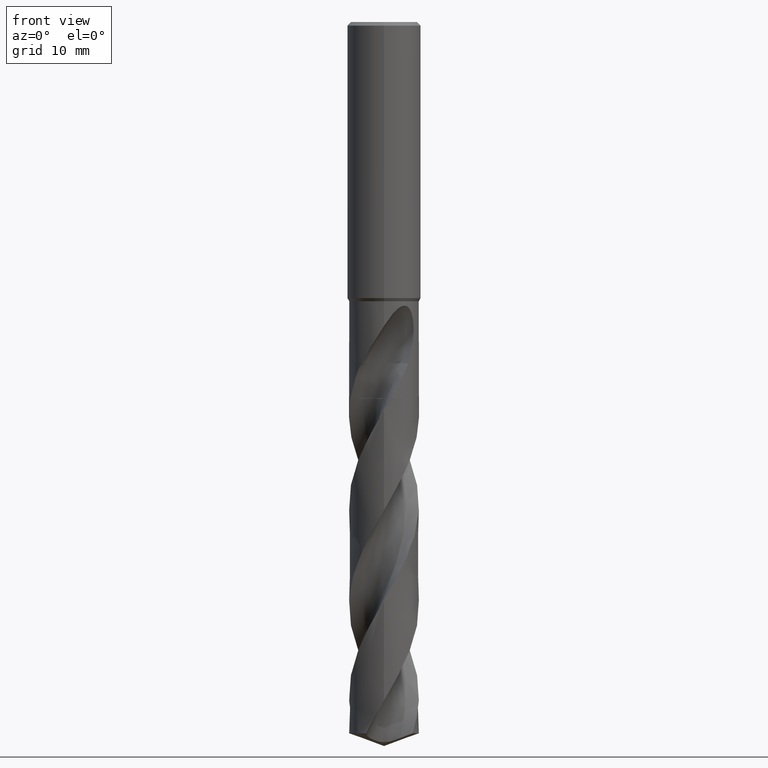
[diagram: clean part render]
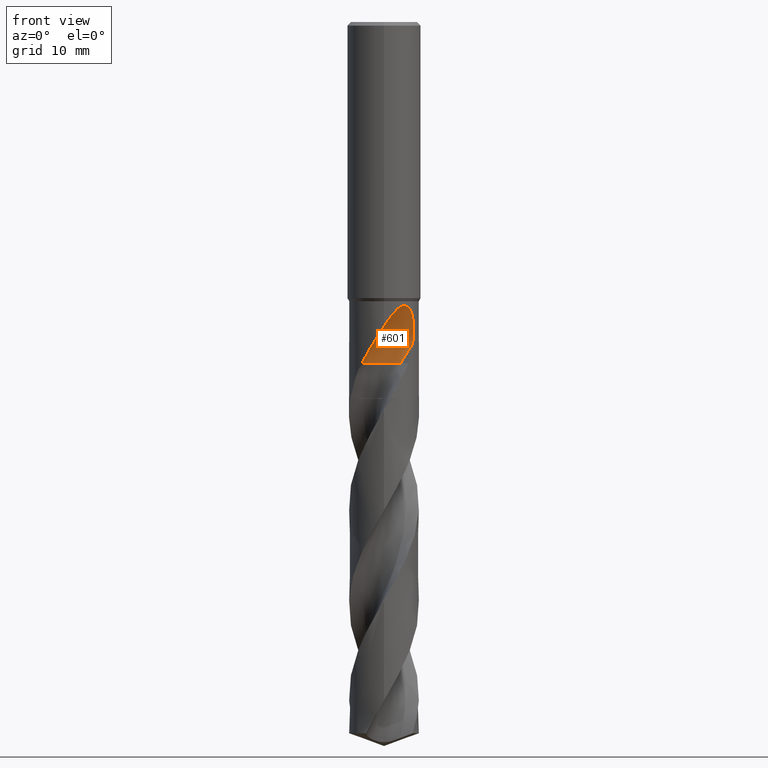
[diagram: same view with one face highlighted and labeled with its STEP entity id]
A machine part, front view. The second image highlights one B-rep face of the part: STEP entity #601.
In plain terms, the highlighted face is a SurfaceOfRevolution surface.
Its self-contained STEP definition (entity closure, byte-faithful):
#315=VERTEX_POINT('',#848);
#331=VERTEX_POINT('',#865);
#347=EDGE_CURVE('',#315,#331,#882,.T.);
#351=EDGE_CURVE('',#791,#745,#886,.T.);
#533=EDGE_CURVE('',#745,#315,#1084,.T.);
#535=EDGE_CURVE('',#791,#741,#1086,.T.);
#601=ADVANCED_FACE('',(#1159),#1160,.F.);
#741=VERTEX_POINT('',#1315);
#745=VERTEX_POINT('',#1319);
#789=EDGE_CURVE('',#741,#331,#1368,.T.);
#791=VERTEX_POINT('',#1370);
#848=CARTESIAN_POINT('',(2.68700576843817,-2.82299423156183,-55.6234));
#865=CARTESIAN_POINT('',(4.63776033084659,-3.31378622026614,-52.5021927001465));
#882=CIRCLE('',#1685,24.7679814308697);
#886=CIRCLE('',#1690,3.8);
#1084=CIRCLE('',#4311,3.8);
#1086=B_SPLINE_CURVE_WITH_KNOTS('',3,(#4314,#4315,#4316,#4317,#4318,#4319,#4320,#4321,#4322,#4323,#4324,#4325,#4326,#4327,#4328,#4329,#4330,#4331,#4332,#4333,#4334,#4335,#4336,#4337,#4338,#4339,#4340,#4341,#4342,#4343),.UNSPECIFIED.,.F.,.F.,(4,2,2,2,2,2,2,2,2,2,2,2,2,2,4),(0.0,2.7926778889615,4.31754598055786,5.69869259420309,7.30325232772353,9.23069609631088,10.9012443522705,11.6582801216618,12.2115809013783,12.7351652311766,13.3993631586042,14.3711116584775,15.7525664123368,16.6565782429127,17.6066332438752),.UNSPECIFIED.);
#1159=FACE_OUTER_BOUND('',#6140,.T.);
#1160=SURFACE_OF_REVOLUTION('',#6141,#6142);
#1315=CARTESIAN_POINT('',(1.6889982332657E-012,-5.7,-49.564432701385));
#1319=CARTESIAN_POINT('',(0.629755605937252,-1.76253026339539,-55.6234));
#1368=B_SPLINE_CURVE_WITH_KNOTS('',3,(#8740,#8741,#8742,#8743,#8744,#8745,#8746,#8747,#8748,#8749,#8750,#8751,#8752,#8753,#8754,#8755,#8756,#8757,#8758,#8759,#8760,#8761,#8762,#8763,#8764,#8765,#8766,#8767,#8768,#8769),.UNSPECIFIED.,.F.,.F.,(4,2,2,2,2,2,2,2,2,2,2,2,2,2,4),(0.0,2.7926778889615,4.31754598055786,5.69869259420309,7.30325232772353,9.23069609631088,10.9012443522705,11.6582801216618,12.2115809013783,12.7351652311766,13.3993631586042,14.3711116584775,15.7525664123368,16.6565782429127,17.6066332438752),.UNSPECIFIED.);
#1370=CARTESIAN_POINT('',(-3.63212121843226,-4.3929142325584,-55.6234));
#1685=AXIS2_PLACEMENT_3D('',#8935,#8936,#8937);
#1690=AXIS2_PLACEMENT_3D('',#8938,#8939,#8940);
#4311=AXIS2_PLACEMENT_3D('',#9107,#9108,#9109);
#4314=CARTESIAN_POINT('',(-3.63212121843226,-4.3929142325584,-55.6234));
#4315=CARTESIAN_POINT('',(-3.25612880486541,-4.70378987250696,-54.8305903574183));
#4316=CARTESIAN_POINT('',(-2.82382285423306,-4.9801366934213,-54.0914357850701));
#4317=CARTESIAN_POINT('',(-2.07001022468731,-5.31885775432251,-52.8566277055386));
#4318=CARTESIAN_POINT('',(-1.79875293876833,-5.41629503688911,-52.4221805832301));
#4319=CARTESIAN_POINT('',(-1.2736331393028,-5.56191839378492,-51.581203761006));
#4320=CARTESIAN_POINT('',(-1.02211525844426,-5.61336677658903,-51.1785939428247));
#4321=CARTESIAN_POINT('',(-0.477685034960905,-5.68761944438632,-50.3108630831571));
#4322=CARTESIAN_POINT('',(-0.180225050920481,-5.70505189272031,-49.8389498652344));
#4323=CARTESIAN_POINT('',(0.480357587329574,-5.69115663555511,-48.8293715885689));
#4324=CARTESIAN_POINT('',(0.872016417329019,-5.64817925460845,-48.2549104709474));
#4325=CARTESIAN_POINT('',(1.62727976974039,-5.47461626209701,-47.3076638301113));
#4326=CARTESIAN_POINT('',(2.04513663928422,-5.34238325924354,-46.8454446984873));
#4327=CARTESIAN_POINT('',(2.67755904640715,-5.0367309148296,-46.4126228247785));
#4328=CARTESIAN_POINT('',(2.88689516822255,-4.92134005876107,-46.3056551672719));
#4329=CARTESIAN_POINT('',(3.25370015573399,-4.68374746759451,-46.2234849169615));
#4330=CARTESIAN_POINT('',(3.40414746799161,-4.57554602873244,-46.2219506548835));
#4331=CARTESIAN_POINT('',(3.68436370411239,-4.35267366933959,-46.2938669707582));
#4332=CARTESIAN_POINT('',(3.80691629961332,-4.24503077791542,-46.3612948466912));
#4333=CARTESIAN_POINT('',(4.0563094681869,-4.00913980592545,-46.5722688643476));
#4334=CARTESIAN_POINT('',(4.17169003208752,-3.88689519589313,-46.728035196308));
#4335=CARTESIAN_POINT('',(4.40802672911815,-3.6199651691906,-47.1545717534252));
#4336=CARTESIAN_POINT('',(4.5209909620893,-3.47460269525771,-47.4709358170665));
#4337=CARTESIAN_POINT('',(4.73341600978283,-3.18271673679078,-48.3560873087968));
#4338=CARTESIAN_POINT('',(4.8102125643954,-3.05838741426594,-48.9864803666684));
#4339=CARTESIAN_POINT('',(4.8482236367528,-2.9975876951175,-50.1531821325049));
#4340=CARTESIAN_POINT('',(4.83928615139985,-3.01240686606538,-50.6178200273247));
#4341=CARTESIAN_POINT('',(4.7761595783502,-3.11157973865214,-51.5608028469977));
#4342=CARTESIAN_POINT('',(4.71979503542682,-3.19897576679507,-52.0355985184659));
#4343=CARTESIAN_POINT('',(4.63776033084659,-3.31378622026614,-52.5021927001465));
#6140=EDGE_LOOP('',(#9172,#9173,#9174,#9175,#9176));
#6141=(B_SPLINE_CURVE(3,(#9178,#9179,#9180,#9181,#9182,#9183,#9184,#9185,#9186),.UNSPECIFIED.,.F.,.F.)B_SPLINE_CURVE_WITH_KNOTS((4,1,3,1,4),(-2.85636930855203,-2.55358058408967,-2.2507918596273,-1.94800313516494,-1.64521441070257),.UNSPECIFIED.)RATIONAL_B_SPLINE_CURVE((1.09168101166155,1.03056033722052,0.969439662779485,1.03056033722052,1.09168101166155,1.03056033722052,0.969439662779485,1.03056033722052,1.09168101166155))BOUNDED_CURVE()REPRESENTATION_ITEM('')GEOMETRIC_REPRESENTATION_ITEM()CURVE());
#6142=AXIS1_PLACEMENT('',#9193,#9194);
#8740=CARTESIAN_POINT('',(-3.63212121843226,-4.3929142325584,-55.6234));
#8741=CARTESIAN_POINT('',(-3.25612880486541,-4.70378987250696,-54.8305903574183));
#8742=CARTESIAN_POINT('',(-2.82382285423306,-4.9801366934213,-54.0914357850701));
#8743=CARTESIAN_POINT('',(-2.07001022468731,-5.31885775432251,-52.8566277055386));
#8744=CARTESIAN_POINT('',(-1.79875293876833,-5.41629503688911,-52.4221805832301));
#8745=CARTESIAN_POINT('',(-1.2736331393028,-5.56191839378492,-51.581203761006));
#8746=CARTESIAN_POINT('',(-1.02211525844426,-5.61336677658903,-51.1785939428247));
#8747=CARTESIAN_POINT('',(-0.477685034960905,-5.68761944438632,-50.3108630831571));
#8748=CARTESIAN_POINT('',(-0.180225050920481,-5.70505189272031,-49.8389498652344));
#8749=CARTESIAN_POINT('',(0.480357587329574,-5.69115663555511,-48.8293715885689));
#8750=CARTESIAN_POINT('',(0.872016417329019,-5.64817925460845,-48.2549104709474));
#8751=CARTESIAN_POINT('',(1.62727976974039,-5.47461626209701,-47.3076638301113));
#8752=CARTESIAN_POINT('',(2.04513663928422,-5.34238325924354,-46.8454446984873));
#8753=CARTESIAN_POINT('',(2.67755904640715,-5.0367309148296,-46.4126228247785));
#8754=CARTESIAN_POINT('',(2.88689516822255,-4.92134005876107,-46.3056551672719));
#8755=CARTESIAN_POINT('',(3.25370015573399,-4.68374746759451,-46.2234849169615));
#8756=CARTESIAN_POINT('',(3.40414746799161,-4.57554602873244,-46.2219506548835));
#8757=CARTESIAN_POINT('',(3.68436370411239,-4.35267366933959,-46.2938669707582));
#8758=CARTESIAN_POINT('',(3.80691629961332,-4.24503077791542,-46.3612948466912));
#8759=CARTESIAN_POINT('',(4.0563094681869,-4.00913980592545,-46.5722688643476));
#8760=CARTESIAN_POINT('',(4.17169003208752,-3.88689519589313,-46.728035196308));
#8761=CARTESIAN_POINT('',(4.40802672911815,-3.6199651691906,-47.1545717534252));
#8762=CARTESIAN_POINT('',(4.5209909620893,-3.47460269525771,-47.4709358170665));
#8763=CARTESIAN_POINT('',(4.73341600978283,-3.18271673679078,-48.3560873087968));
#8764=CARTESIAN_POINT('',(4.8102125643954,-3.05838741426594,-48.9864803666684));
#8765=CARTESIAN_POINT('',(4.8482236367528,-2.9975876951175,-50.1531821325049));
#8766=CARTESIAN_POINT('',(4.83928615139985,-3.01240686606538,-50.6178200273247));
#8767=CARTESIAN_POINT('',(4.7761595783502,-3.11157973865214,-51.5608028469977));
#8768=CARTESIAN_POINT('',(4.71979503542682,-3.19897576679507,-52.0355985184659));
#8769=CARTESIAN_POINT('',(4.63776033084659,-3.31378622026614,-52.5021927001465));
#8935=CARTESIAN_POINT('',(1.9322288671915,-27.55,-56.8310430419947));
#8936=DIRECTION('',(0.847998304005088,-1.1582677837888E-017,-0.52999894000318));
#8937=DIRECTION('',(0.0535598122533607,0.994880693138896,0.085695699605377));
#8938=CARTESIAN_POINT('',(-1.94935667141921E-005,-5.50998050643328,-55.6234));
#8939=DIRECTION('',(-0.0,0.0,-1.0));
#8940=DIRECTION('',(-0.707101651281964,-0.707111911053915,0.0));
#9107=CARTESIAN_POINT('',(-1.94935667141921E-005,-5.50998050643328,-55.6234));
#9108=DIRECTION('',(-0.0,0.0,-1.0));
#9109=DIRECTION('',(-0.707101651281964,-0.707111911053915,0.0));
#9172=ORIENTED_EDGE('',*,*,#535,.F.);
#9173=ORIENTED_EDGE('',*,*,#351,.T.);
#9174=ORIENTED_EDGE('',*,*,#533,.T.);
#9175=ORIENTED_EDGE('',*,*,#347,.T.);
#9176=ORIENTED_EDGE('',*,*,#789,.F.);
#9178=CARTESIAN_POINT('',(2.68700576843817,-2.82299423156183,-55.6234));
#9179=CARTESIAN_POINT('',(2.16069717208077,-2.2966779986699,-55.6234));
#9180=CARTESIAN_POINT('',(0.792141132711151,-1.54883296362343,-55.6234));
#9181=CARTESIAN_POINT('',(-0.758768587342303,-1.71283561476797,-55.6234));
#9182=CARTESIAN_POINT('',(-1.44701174958509,-1.99626261635974,-55.6234));
#9183=CARTESIAN_POINT('',(-2.13525491182787,-2.27968961795152,-55.6234));
#9184=CARTESIAN_POINT('',(-3.35189432846056,-3.25539775014803,-55.6234));
#9185=CARTESIAN_POINT('',(-3.79693933221971,-4.75010600728978,-55.6234));
#9186=CARTESIAN_POINT('',(-3.79998762578911,-5.49441792007337,-55.6234));
#9193=CARTESIAN_POINT('',(1.9322288671915,-27.55,-56.8310430419947));
#9194=DIRECTION('',(-0.847998304005088,0.0,0.52999894000318));